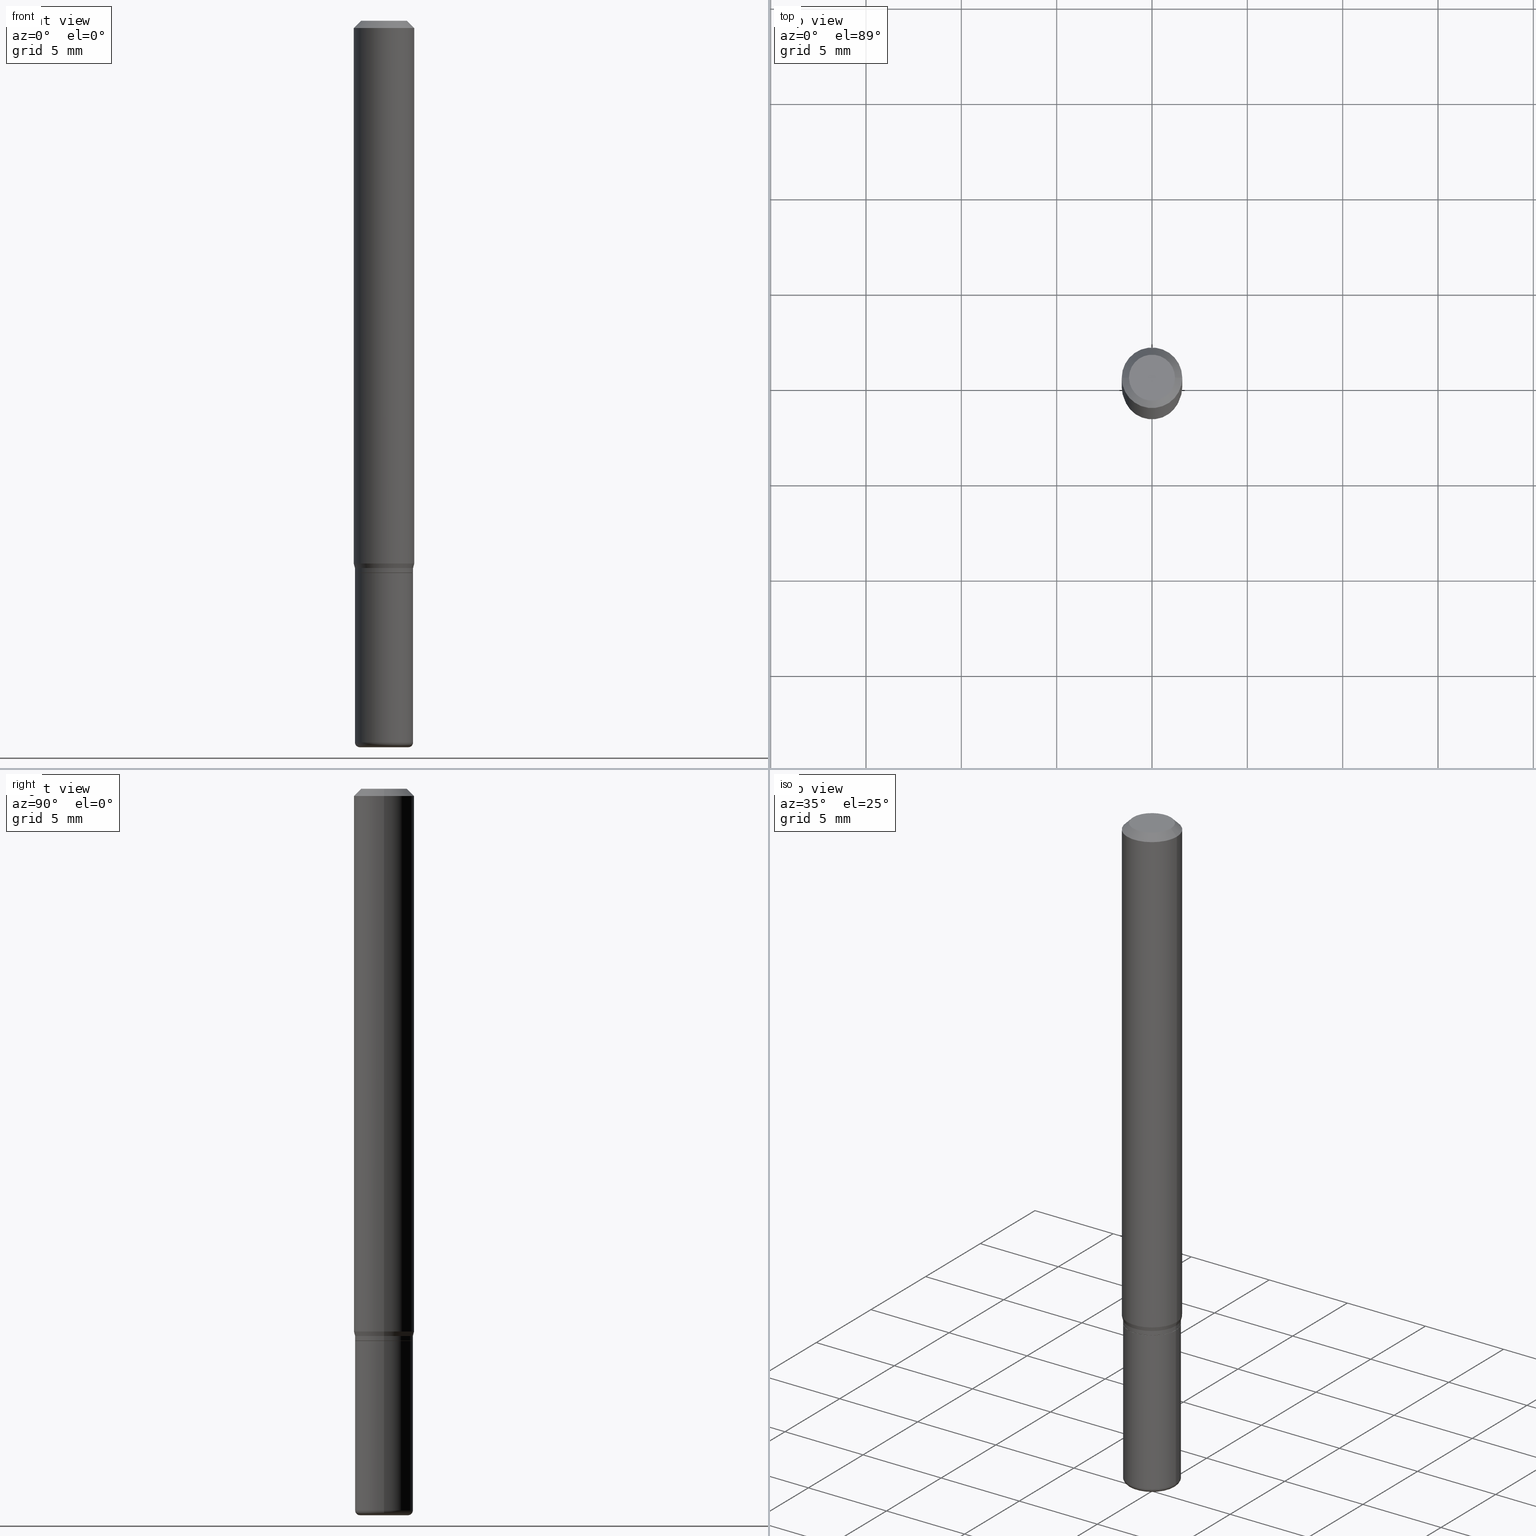
[diagram: canonical four-view strip — front | top / right | iso, engineering-drawing reading convention]
A machine part, canonical four-view strip (front | top / right | iso — engineering-drawing reading convention). The complete STEP part file that produces these views, byte-faithful:
ISO-10303-21;
HEADER;
FILE_DESCRIPTION (( 'STEP AP203' ),
    '1' );
FILE_NAME ('08775.STEP',
    '2024-02-29T20:59:46',
    ( '' ),
    ( '' ),
    'SwSTEP 2.0',
    'SolidWorks 2023',
    '' );
FILE_SCHEMA (( 'CONFIG_CONTROL_DESIGN' ));
ENDSEC;

DATA;
#1 = FACE_OUTER_BOUND ( 'NONE', #71, .T. ) ;
#2 = EDGE_CURVE ( 'NONE', #149, #237, #317, .T. ) ;
#3 = CARTESIAN_POINT ( 'NONE',  ( 0.06250000000000000000, -4.364351673553916694E-16, 3.047610484872459871E-30 ) ) ;
#4 = DIRECTION ( 'NONE',  ( -2.445468806185136597E-29, 3.491481338843145583E-15, 1.000000000000000000 ) ) ;
#5 = CARTESIAN_POINT ( 'NONE',  ( -0.05999999999999994921, -4.164972319122677700E-15, -1.490000000000000213 ) ) ;
#6 = DIRECTION ( 'NONE',  ( 1.000000000000000000, -6.982962677686270655E-15, 0.000000000000000000 ) ) ;
#7 = PERSON_AND_ORGANIZATION_ROLE ( 'design_owner' ) ;
#8 = ADVANCED_FACE ( 'NONE', ( #83 ), #166, .T. ) ;
#9 = AXIS2_PLACEMENT_3D ( 'NONE', #180, #129, #90 ) ;
#10 = CC_DESIGN_PERSON_AND_ORGANIZATION_ASSIGNMENT ( #103, #500, ( #305 ) ) ;
#11 = DIRECTION ( 'NONE',  ( 1.000000000000000000, -6.982962677686269077E-15, 0.000000000000000000 ) ) ;
#12 = CARTESIAN_POINT ( 'NONE',  ( -0.06250000000000000000, 4.440892098500626162E-16, -3.074334431409316114E-30 ) ) ;
#13 = FACE_OUTER_BOUND ( 'NONE', #280, .T. ) ;
#14 = DATE_TIME_ROLE ( 'classification_date' ) ;
#15 = DIRECTION ( 'NONE',  ( 1.000000000000000000, -6.982962677686266711E-15, 0.000000000000000000 ) ) ;
#16 = DIRECTION ( 'NONE',  ( 1.000000000000000000, -6.982962677686275388E-15, 0.000000000000000000 ) ) ;
#17 = DIRECTION ( 'NONE',  ( 1.000000000000000000, -6.982962677686265922E-15, 0.000000000000000000 ) ) ;
#18 = EDGE_CURVE ( 'NONE', #349, #42, #30, .T. ) ;
#19 = VECTOR ( 'NONE', #390, 39.37007874015748143 ) ;
#20 = DIRECTION ( 'NONE',  ( 1.000000000000000000, -6.982962677686267499E-15, 4.876176775795936353E-29 ) ) ;
#21 = CARTESIAN_POINT ( 'NONE',  ( 2.740563216406685153E-29, -3.912797948517150914E-15, -1.120669872981077786 ) ) ;
#22 = CALENDAR_DATE ( 2024, 29, 2 ) ;
#23 = CARTESIAN_POINT ( 'NONE',  ( -6.680649051745406845E-45, 9.538196290434862081E-31, 2.731847993664263218E-16 ) ) ;
#24 = DIRECTION ( 'NONE',  ( 0.7071067811865479058, -7.319954787623257623E-15, -0.7071067811865471286 ) ) ;
#25 = ADVANCED_FACE ( 'NONE', ( #75 ), #517, .T. ) ;
#26 = CIRCLE ( 'NONE', #319, 0.05999999999999997696 ) ;
#27 =( GEOMETRIC_REPRESENTATION_CONTEXT ( 3 ) GLOBAL_UNCERTAINTY_ASSIGNED_CONTEXT ( ( #314 ) ) GLOBAL_UNIT_ASSIGNED_CONTEXT ( ( #131, #171, #323 ) ) REPRESENTATION_CONTEXT ( 'NONE', 'WORKASPACE' ) );
#28 = CARTESIAN_POINT ( 'NONE',  ( 2.763379750989204444E-29, -3.945373912892755049E-15, -1.130000000000000115 ) ) ;
#29 = ADVANCED_FACE ( 'NONE', ( #13 ), #414, .F. ) ;
#30 = LINE ( 'NONE', #353, #111 ) ;
#31 = VERTEX_POINT ( 'NONE', #455 ) ;
#32 = ORIENTED_EDGE ( 'NONE', *, *, #2, .F. ) ;
#33 = CLOSED_SHELL ( 'NONE', ( #260, #146, #193, #60, #8, #25, #87, #477, #74, #344, #162, #307 ) ) ;
#34 = TOROIDAL_SURFACE ( 'NONE', #45, 0.04999999999999999584, 0.009999999999999953371 ) ;
#35 = ORIENTED_EDGE ( 'NONE', *, *, #153, .T. ) ;
#36 = APPROVAL_PERSON_ORGANIZATION ( #343, #82, #189 ) ;
#37 = VERTEX_POINT ( 'NONE', #249 ) ;
#38 = DIRECTION ( 'NONE',  ( -2.445468806185136877E-29, 3.491481338843145188E-15, 1.000000000000000000 ) ) ;
#39 = ORIENTED_EDGE ( 'NONE', *, *, #18, .T. ) ;
#40 = EDGE_CURVE ( 'NONE', #161, #443, #68, .T. ) ;
#41 = ORIENTED_EDGE ( 'NONE', *, *, #434, .T. ) ;
#42 = VERTEX_POINT ( 'NONE', #290 ) ;
#43 = ORIENTED_EDGE ( 'NONE', *, *, #438, .F. ) ;
#44 = DIRECTION ( 'NONE',  ( -1.000000000000000000, 6.982962677686265922E-15, -4.876176775795935793E-29 ) ) ;
#45 = AXIS2_PLACEMENT_3D ( 'NONE', #345, #454, #225 ) ;
#46 = DIRECTION ( 'NONE',  ( -6.982962677686266711E-15, -1.000000000000000000, 3.491481338843145583E-15 ) ) ;
#47 = CALENDAR_DATE ( 2024, 29, 2 ) ;
#48 = AXIS2_PLACEMENT_3D ( 'NONE', #346, #341, #219 ) ;
#49 = COORDINATED_UNIVERSAL_TIME_OFFSET ( 5, 0, .BEHIND. ) ;
#50 = VECTOR ( 'NONE', #286, 39.37007874015748143 ) ;
#51 = DIRECTION ( 'NONE',  ( 1.000000000000000000, -6.982962677686266711E-15, 4.876176775795935793E-29 ) ) ;
#52 = DIRECTION ( 'NONE',  ( -2.445468806185136597E-29, 3.491481338843145583E-15, 1.000000000000000000 ) ) ;
#53 = SECURITY_CLASSIFICATION_LEVEL ( 'unclassified' ) ;
#54 = DIRECTION ( 'NONE',  ( -2.445468806185136597E-29, 3.491481338843145583E-15, 1.000000000000000000 ) ) ;
#55 = DIRECTION ( 'NONE',  ( 2.438088387897960049E-29, -3.491481338843145188E-15, -1.000000000000000000 ) ) ;
#56 = CARTESIAN_POINT ( 'NONE',  ( -0.04750000000000000749, 3.578768372314221353E-16, 2.731847993664239060E-16 ) ) ;
#57 = APPROVAL_DATE_TIME ( #254, #488 ) ;
#58 = CARTESIAN_POINT ( 'NONE',  ( 0.000000000000000000, 0.000000000000000000, 0.000000000000000000 ) ) ;
#59 = CARTESIAN_POINT ( 'NONE',  ( 3.668203209277632395E-31, -5.237222008264614861E-17, -0.01499999999999970281 ) ) ;
#60 = ADVANCED_FACE ( 'NONE', ( #1 ), #211, .T. ) ;
#61 = CALENDAR_DATE ( 2024, 29, 2 ) ;
#62 = AXIS2_PLACEMENT_3D ( 'NONE', #139, #143, #499 ) ;
#63 = CIRCLE ( 'NONE', #440, 0.04750000000000000749 ) ;
#64 = DIRECTION ( 'NONE',  ( -2.445468806185136597E-29, 3.491481338843145583E-15, 1.000000000000000000 ) ) ;
#65 = CARTESIAN_POINT ( 'NONE',  ( 0.06250000000000000000, -4.811533449433669144E-16, -0.01499999999999970281 ) ) ;
#66 = ORIENTED_EDGE ( 'NONE', *, *, #411, .F. ) ;
#67 = EDGE_CURVE ( 'NONE', #188, #116, #179, .T. ) ;
#68 = CIRCLE ( 'NONE', #222, 0.04999999999999999584 ) ;
#69 = AXIS2_PLACEMENT_3D ( 'NONE', #393, #472, #275 ) ;
#70 = APPROVAL_PERSON_ORGANIZATION ( #347, #181, #130 ) ;
#71 = EDGE_LOOP ( 'NONE', ( #361, #118, #81, #241 ) ) ;
#72 = EDGE_LOOP ( 'NONE', ( #66, #198, #39, #476 ) ) ;
#73 = ORIENTED_EDGE ( 'NONE', *, *, #497, .T. ) ;
#74 = ADVANCED_FACE ( 'NONE', ( #256 ), #421, .F. ) ;
#75 = FACE_OUTER_BOUND ( 'NONE', #72, .T. ) ;
#76 = ORIENTED_EDGE ( 'NONE', *, *, #324, .T. ) ;
#77 = AXIS2_PLACEMENT_3D ( 'NONE', #338, #494, #51 ) ;
#78 = ORIENTED_EDGE ( 'NONE', *, *, #172, .T. ) ;
#79 = VERTEX_POINT ( 'NONE', #495 ) ;
#80 = ORIENTED_EDGE ( 'NONE', *, *, #40, .T. ) ;
#81 = ORIENTED_EDGE ( 'NONE', *, *, #236, .F. ) ;
#82 = APPROVAL ( #251, 'UNSPECIFIED' ) ;
#83 = FACE_OUTER_BOUND ( 'NONE', #509, .T. ) ;
#84 = AXIS2_PLACEMENT_3D ( 'NONE', #214, #55, #381 ) ;
#85 = CIRCLE ( 'NONE', #127, 0.04999999999999999584 ) ;
#86 = CARTESIAN_POINT ( 'NONE',  ( -0.05999999999999995615, 4.263256414560597999E-16, -2.951361054152941661E-30 ) ) ;
#87 = ADVANCED_FACE ( 'NONE', ( #405 ), #169, .T. ) ;
#88 = PRODUCT_DEFINITION ( 'UNKNOWN', '', #305, #119 ) ;
#89 = CARTESIAN_POINT ( 'NONE',  ( 3.668203209277632395E-31, -5.237222008264614861E-17, -0.01499999999999970281 ) ) ;
#90 = DIRECTION ( 'NONE',  ( 1.000000000000000000, -6.982962677686261977E-15, 0.000000000000000000 ) ) ;
#91 = DIRECTION ( 'NONE',  ( -0.7071067811866199593, 7.493145998870616062E-15, 0.7071067811864750752 ) ) ;
#92 = APPLICATION_PROTOCOL_DEFINITION ( 'international standard', 'config_control_design', 1994, #320 ) ;
#93 = LINE ( 'NONE', #65, #518 ) ;
#94 = CARTESIAN_POINT ( 'NONE',  ( 0.000000000000000000, 0.000000000000000000, 0.000000000000000000 ) ) ;
#95 = CALENDAR_DATE ( 2024, 29, 2 ) ;
#96 = CALENDAR_DATE ( 2024, 29, 2 ) ;
#97 = CIRCLE ( 'NONE', #318, 0.06250000000000000000 ) ;
#98 = DIRECTION ( 'NONE',  ( 1.000000000000000000, -6.982962677686275388E-15, 0.000000000000000000 ) ) ;
#99 = DIRECTION ( 'NONE',  ( -2.445468806185136597E-29, 3.491481338843145583E-15, 1.000000000000000000 ) ) ;
#100 = EDGE_CURVE ( 'NONE', #31, #79, #253, .T. ) ;
#101 = DIRECTION ( 'NONE',  ( 1.000000000000000000, -6.982962677686265922E-15, 4.876176775795935793E-29 ) ) ;
#102 = DIRECTION ( 'NONE',  ( -2.445468806185136597E-29, 3.491481338843145583E-15, 1.000000000000000000 ) ) ;
#103 = PERSON_AND_ORGANIZATION ( #367, #417 ) ;
#104 = DIRECTION ( 'NONE',  ( -2.438088387897960049E-29, 3.491481338843145188E-15, 1.000000000000000000 ) ) ;
#105 = CARTESIAN_POINT ( 'NONE',  ( 0.05949999999999997652, -4.395775005603518747E-15, -1.140000000000000124 ) ) ;
#106 = CIRCLE ( 'NONE', #398, 0.04750000000000000749 ) ;
#107 = CARTESIAN_POINT ( 'NONE',  ( 2.787834439051055989E-29, -3.980288726281186698E-15, -1.140000000000000124 ) ) ;
#108 = EDGE_CURVE ( 'NONE', #439, #512, #264, .T. ) ;
#109 = EDGE_CURVE ( 'NONE', #79, #514, #126, .T. ) ;
#110 = ORIENTED_EDGE ( 'NONE', *, *, #18, .F. ) ;
#111 = VECTOR ( 'NONE', #507, 39.37007874015748143 ) ;
#112 = AXIS2_PLACEMENT_3D ( 'NONE', #368, #484, #15 ) ;
#113 = APPROVAL_PERSON_ORGANIZATION ( #419, #488, #412 ) ;
#114 = EDGE_CURVE ( 'NONE', #395, #349, #326, .T. ) ;
#115 = ORIENTED_EDGE ( 'NONE', *, *, #428, .T. ) ;
#116 = VERTEX_POINT ( 'NONE', #333 ) ;
#117 = ORIENTED_EDGE ( 'NONE', *, *, #299, .F. ) ;
#118 = ORIENTED_EDGE ( 'NONE', *, *, #270, .T. ) ;
#119 = DESIGN_CONTEXT ( 'detailed design', #320, 'design' ) ;
#120 = CIRCLE ( 'NONE', #304, 0.06250000000000000000 ) ;
#121 = EDGE_LOOP ( 'NONE', ( #228, #364, #397, #43 ) ) ;
#122 = EDGE_CURVE ( 'NONE', #188, #276, #106, .T. ) ;
#123 = ORIENTED_EDGE ( 'NONE', *, *, #148, .T. ) ;
#124 = VERTEX_POINT ( 'NONE', #496 ) ;
#125 = DIRECTION ( 'NONE',  ( 1.000000000000000000, -6.982962677686270655E-15, 0.000000000000000000 ) ) ;
#126 = CIRCLE ( 'NONE', #427, 0.05999999999999997696 ) ;
#127 = AXIS2_PLACEMENT_3D ( 'NONE', #218, #332, #16 ) ;
#128 = CARTESIAN_POINT ( 'NONE',  ( 0.000000000000000000, 0.000000000000000000, 0.000000000000000000 ) ) ;
#129 = DIRECTION ( 'NONE',  ( -2.445468806185136597E-29, 3.491481338843145583E-15, 1.000000000000000000 ) ) ;
#130 = APPROVAL_ROLE ( '' ) ;
#131 =( CONVERSION_BASED_UNIT ( 'INCH', #176 ) LENGTH_UNIT ( ) NAMED_UNIT ( #227 ) );
#132 = DIRECTION ( 'NONE',  ( -2.445468806185136597E-29, 3.491481338843145583E-15, 1.000000000000000000 ) ) ;
#133 = CARTESIAN_POINT ( 'NONE',  ( 3.668203209277704895E-29, -5.237222008264718177E-15, -1.500000000000000222 ) ) ;
#134 = DIRECTION ( 'NONE',  ( -2.438088387897960049E-29, 3.491481338843145188E-15, 1.000000000000000000 ) ) ;
#135 = DIRECTION ( 'NONE',  ( -2.445468806185136877E-29, 3.491481338843145188E-15, 1.000000000000000000 ) ) ;
#136 = CARTESIAN_POINT ( 'NONE',  ( -0.06250000000000000000, 3.840629472727455270E-16, -0.01499999999999970281 ) ) ;
#137 = DIRECTION ( 'NONE',  ( -2.445468806185136597E-29, 3.491481338843145583E-15, 1.000000000000000000 ) ) ;
#138 = COORDINATED_UNIVERSAL_TIME_OFFSET ( 5, 0, .BEHIND. ) ;
#139 = CARTESIAN_POINT ( 'NONE',  ( 3.643748521215853910E-29, -5.202307194876288105E-15, -1.490000000000000213 ) ) ;
#140 = EDGE_CURVE ( 'NONE', #37, #42, #120, .T. ) ;
#141 = CIRCLE ( 'NONE', #156, 0.009999999999999953371 ) ;
#142 = FACE_OUTER_BOUND ( 'NONE', #182, .T. ) ;
#143 = DIRECTION ( 'NONE',  ( -2.445468806185136597E-29, 3.491481338843145583E-15, 1.000000000000000000 ) ) ;
#144 = PERSON_AND_ORGANIZATION_ROLE ( 'design_supplier' ) ;
#145 = LINE ( 'NONE', #12, #196 ) ;
#146 = ADVANCED_FACE ( 'NONE', ( #410 ), #459, .T. ) ;
#147 = CARTESIAN_POINT ( 'NONE',  ( -0.05999999999999994921, -3.493878505051891428E-15, -1.130000000000000115 ) ) ;
#148 = EDGE_CURVE ( 'NONE', #161, #439, #141, .T. ) ;
#149 = VERTEX_POINT ( 'NONE', #212 ) ;
#150 = VECTOR ( 'NONE', #485, 39.37007874015748143 ) ;
#151 = EDGE_CURVE ( 'NONE', #163, #514, #416, .T. ) ;
#152 = ORIENTED_EDGE ( 'NONE', *, *, #352, .F. ) ;
#153 = EDGE_CURVE ( 'NONE', #349, #395, #429, .T. ) ;
#154 = CLOSED_SHELL ( 'NONE', ( #363, #306, #29, #191, #446, #170 ) ) ;
#155 = ORIENTED_EDGE ( 'NONE', *, *, #67, .F. ) ;
#156 = AXIS2_PLACEMENT_3D ( 'NONE', #291, #46, #11 ) ;
#157 = LOCAL_TIME ( 15, 59, 46.00000000000000000, #378 ) ;
#158 = ORIENTED_EDGE ( 'NONE', *, *, #2, .T. ) ;
#159 = EDGE_LOOP ( 'NONE', ( #471, #435 ) ) ;
#160 = ORIENTED_EDGE ( 'NONE', *, *, #109, .F. ) ;
#161 = VERTEX_POINT ( 'NONE', #185 ) ;
#162 = ADVANCED_FACE ( 'NONE', ( #369 ), #433, .T. ) ;
#163 = VERTEX_POINT ( 'NONE', #105 ) ;
#164 = ORIENTED_EDGE ( 'NONE', *, *, #434, .F. ) ;
#165 = EDGE_LOOP ( 'NONE', ( #359, #117 ) ) ;
#166 = CONICAL_SURFACE ( 'NONE', #504, 0.05999999999999994921, 0.2617993877991496854 ) ;
#167 = CIRCLE ( 'NONE', #493, 0.05949999999999997652 ) ;
#168 = ORIENTED_EDGE ( 'NONE', *, *, #220, .F. ) ;
#169 = CYLINDRICAL_SURFACE ( 'NONE', #200, 0.06250000000000000000 ) ;
#170 = ADVANCED_FACE ( 'NONE', ( #215 ), #422, .F. ) ;
#171 =( NAMED_UNIT ( * ) PLANE_ANGLE_UNIT ( ) SI_UNIT ( $, .RADIAN. ) );
#172 = EDGE_CURVE ( 'NONE', #31, #163, #167, .T. ) ;
#173 = DIRECTION ( 'NONE',  ( 1.000000000000000000, -6.982962677686261977E-15, 0.000000000000000000 ) ) ;
#174 = PERSON_AND_ORGANIZATION ( #367, #417 ) ;
#175 = AXIS2_PLACEMENT_3D ( 'NONE', #58, #54, #430 ) ;
#176 = LENGTH_MEASURE_WITH_UNIT ( LENGTH_MEASURE( 0.02539999999999999897 ), #204 );
#177 = CARTESIAN_POINT ( 'NONE',  ( 0.05949999999999997652, -4.395775005603518747E-15, -1.140000000000000124 ) ) ;
#178 = DIRECTION ( 'NONE',  ( 1.000000000000000000, -6.982962677686268288E-15, 0.000000000000000000 ) ) ;
#179 = LINE ( 'NONE', #136, #432 ) ;
#180 = CARTESIAN_POINT ( 'NONE',  ( 2.787834439051055989E-29, -3.980288726281186698E-15, -1.140000000000000124 ) ) ;
#181 = APPROVAL ( #483, 'UNSPECIFIED' ) ;
#182 = EDGE_LOOP ( 'NONE', ( #195, #73, #152, #168 ) ) ;
#183 = COORDINATED_UNIVERSAL_TIME_OFFSET ( 5, 0, .BEHIND. ) ;
#184 = CARTESIAN_POINT ( 'NONE',  ( 0.05999999999999997696, -4.397520746272941039E-15, -1.139500000000000179 ) ) ;
#185 = CARTESIAN_POINT ( 'NONE',  ( 0.04999999999999999584, -5.586370142149032301E-15, -1.500000000000000222 ) ) ;
#186 = VECTOR ( 'NONE', #91, 39.37007874015748143 ) ;
#187 = DIRECTION ( 'NONE',  ( -2.445468806185136597E-29, 3.491481338843145583E-15, 1.000000000000000000 ) ) ;
#188 = VERTEX_POINT ( 'NONE', #56 ) ;
#189 = APPROVAL_ROLE ( '' ) ;
#190 = EDGE_CURVE ( 'NONE', #42, #37, #473, .T. ) ;
#191 = ADVANCED_FACE ( 'NONE', ( #287 ), #425, .T. ) ;
#192 = AXIS2_PLACEMENT_3D ( 'NONE', #462, #245, #487 ) ;
#193 = ADVANCED_FACE ( 'NONE', ( #382 ), #238, .T. ) ;
#194 = DIRECTION ( 'NONE',  ( 1.000000000000000000, -6.982962677686265922E-15, 0.000000000000000000 ) ) ;
#195 = ORIENTED_EDGE ( 'NONE', *, *, #108, .T. ) ;
#196 = VECTOR ( 'NONE', #375, 39.37007874015748143 ) ;
#197 = ORIENTED_EDGE ( 'NONE', *, *, #438, .T. ) ;
#198 = ORIENTED_EDGE ( 'NONE', *, *, #114, .T. ) ;
#199 = EDGE_LOOP ( 'NONE', ( #391, #516, #197, #232 ) ) ;
#200 = AXIS2_PLACEMENT_3D ( 'NONE', #322, #4, #423 ) ;
#201 = CARTESIAN_POINT ( 'NONE',  ( 4.189777606612038494E-16, 0.05999999999999602179, -1.140000000000000346 ) ) ;
#202 = DIRECTION ( 'NONE',  ( 2.445468806185136597E-29, -3.491481338843145583E-15, -1.000000000000000000 ) ) ;
#203 = CARTESIAN_POINT ( 'NONE',  ( 2.740563216406685153E-29, -3.912797948517150914E-15, -1.120669872981077786 ) ) ;
#204 =( LENGTH_UNIT ( ) NAMED_UNIT ( * ) SI_UNIT ( $, .METRE. ) );
#205 = CARTESIAN_POINT ( 'NONE',  ( 2.786611704647963748E-29, -3.978542985611765194E-15, -1.139500000000000179 ) ) ;
#206 = DATE_AND_TIME ( #61, #267 ) ;
#207 = VECTOR ( 'NONE', #336, 39.37007874015748143 ) ;
#208 = CARTESIAN_POINT ( 'NONE',  ( -0.05949999999999997652, -3.557515798503927106E-15, -1.140000000000000124 ) ) ;
#209 = LINE ( 'NONE', #86, #406 ) ;
#210 = FACE_OUTER_BOUND ( 'NONE', #311, .T. ) ;
#211 = CYLINDRICAL_SURFACE ( 'NONE', #284, 0.06250000000000000000 ) ;
#212 = CARTESIAN_POINT ( 'NONE',  ( -0.05999999999999999778, -4.164972319122677700E-15, -1.140000000000000124 ) ) ;
#213 = CARTESIAN_POINT ( 'NONE',  ( 2.787834439051055989E-29, -3.980288726281186698E-15, -1.140000000000000124 ) ) ;
#214 = CARTESIAN_POINT ( 'NONE',  ( 3.316907271900976589E-16, 0.04750000000000000749, -2.925296391183627249E-17 ) ) ;
#215 = FACE_OUTER_BOUND ( 'NONE', #165, .T. ) ;
#216 = DATE_AND_TIME ( #95, #386 ) ;
#217 = ORIENTED_EDGE ( 'NONE', *, *, #140, .T. ) ;
#218 = CARTESIAN_POINT ( 'NONE',  ( 3.668203209277704895E-29, -5.237222008264718177E-15, -1.500000000000000222 ) ) ;
#219 = DIRECTION ( 'NONE',  ( 1.000000000000000000, -6.982962677686265922E-15, 0.000000000000000000 ) ) ;
#220 = EDGE_CURVE ( 'NONE', #439, #237, #315, .T. ) ;
#221 = PERSON_AND_ORGANIZATION_ROLE ( 'classification_officer' ) ;
#222 = AXIS2_PLACEMENT_3D ( 'NONE', #133, #52, #98 ) ;
#223 = AXIS2_PLACEMENT_3D ( 'NONE', #385, #298, #173 ) ;
#224 = AXIS2_PLACEMENT_3D ( 'NONE', #128, #244, #379 ) ;
#225 = DIRECTION ( 'NONE',  ( 1.000000000000000000, -6.982962677686273810E-15, 4.883557194083115143E-29 ) ) ;
#226 = APPLICATION_CONTEXT ( 'configuration controlled 3d designs of mechanical parts and assemblies' ) ;
#227 = DIMENSIONAL_EXPONENTS ( 1.000000000000000000, 0.000000000000000000, 0.000000000000000000, 0.000000000000000000, 0.000000000000000000, 0.000000000000000000, 0.000000000000000000 ) ;
#228 = ORIENTED_EDGE ( 'NONE', *, *, #231, .T. ) ;
#229 = AXIS2_PLACEMENT_3D ( 'NONE', #213, #187, #380 ) ;
#230 = SECURITY_CLASSIFICATION ( '', '', #53 ) ;
#231 = EDGE_CURVE ( 'NONE', #514, #79, #26, .T. ) ;
#232 = ORIENTED_EDGE ( 'NONE', *, *, #114, .F. ) ;
#233 = DIRECTION ( 'NONE',  ( -2.445468806185136597E-29, 3.491481338843145583E-15, 1.000000000000000000 ) ) ;
#234 = ORIENTED_EDGE ( 'NONE', *, *, #151, .T. ) ;
#235 = FACE_OUTER_BOUND ( 'NONE', #502, .T. ) ;
#236 = EDGE_CURVE ( 'NONE', #124, #116, #97, .T. ) ;
#237 = VERTEX_POINT ( 'NONE', #283 ) ;
#238 = CONICAL_SURFACE ( 'NONE', #508, 0.06250000000000000000, 0.7853981633974488341 ) ;
#239 = CC_DESIGN_APPROVAL ( #488, ( #88 ) ) ;
#240 = ORIENTED_EDGE ( 'NONE', *, *, #172, .F. ) ;
#241 = ORIENTED_EDGE ( 'NONE', *, *, #469, .F. ) ;
#242 = EDGE_CURVE ( 'NONE', #443, #512, #243, .T. ) ;
#243 = CIRCLE ( 'NONE', #261, 0.009999999999999953371 ) ;
#244 = DIRECTION ( 'NONE',  ( 0.000000000000000000, 0.000000000000000000, 1.000000000000000000 ) ) ;
#245 = DIRECTION ( 'NONE',  ( -2.445468806185136597E-29, 3.491481338843145583E-15, 1.000000000000000000 ) ) ;
#246 = APPROVAL_STATUS ( 'not_yet_approved' ) ;
#247 = DIRECTION ( 'NONE',  ( 1.000000000000000000, -6.982962677686266711E-15, 0.000000000000000000 ) ) ;
#248 = CARTESIAN_POINT ( 'NONE',  ( -0.05999999999999994921, -3.519048271436694953E-15, -1.130000000000000115 ) ) ;
#249 = CARTESIAN_POINT ( 'NONE',  ( -0.06250000000000000000, -3.468708738667088298E-15, -1.120669872981077786 ) ) ;
#250 = DIRECTION ( 'NONE',  ( -2.445468806185136597E-29, 3.491481338843145583E-15, 1.000000000000000000 ) ) ;
#251 = APPROVAL_STATUS ( 'not_yet_approved' ) ;
#252 = AXIS2_PLACEMENT_3D ( 'NONE', #94, #137, #482 ) ;
#253 = LINE ( 'NONE', #208, #186 ) ;
#254 = DATE_AND_TIME ( #96, #450 ) ;
#255 = FACE_OUTER_BOUND ( 'NONE', #121, .T. ) ;
#256 = FACE_OUTER_BOUND ( 'NONE', #159, .T. ) ;
#257 = DIRECTION ( 'NONE',  ( -2.445468806185136597E-29, 3.491481338843145583E-15, 1.000000000000000000 ) ) ;
#258 = CARTESIAN_POINT ( 'NONE',  ( 0.05999999999999994921, -4.364351673553930105E-15, -1.130000000000000115 ) ) ;
#259 = CYLINDRICAL_SURFACE ( 'NONE', #175, 0.05999999999999995615 ) ;
#260 = ADVANCED_FACE ( 'NONE', ( #255 ), #259, .T. ) ;
#261 = AXIS2_PLACEMENT_3D ( 'NONE', #325, #420, #387 ) ;
#262 = LINE ( 'NONE', #248, #19 ) ;
#263 = CC_DESIGN_DATE_AND_TIME_ASSIGNMENT ( #216, #465, ( #88 ) ) ;
#264 = CIRCLE ( 'NONE', #62, 0.05999999999999994921 ) ;
#265 = ORIENTED_EDGE ( 'NONE', *, *, #497, .F. ) ;
#266 = AXIS2_PLACEMENT_3D ( 'NONE', #424, #64, #178 ) ;
#267 = LOCAL_TIME ( 15, 59, 46.00000000000000000, #452 ) ;
#268 = SHAPE_DEFINITION_REPRESENTATION ( #351, #308 ) ;
#269 = EDGE_LOOP ( 'NONE', ( #513, #217, #396, #355 ) ) ;
#270 = EDGE_CURVE ( 'NONE', #37, #116, #145, .T. ) ;
#271 = PRODUCT ( '08775', '08775', '', ( #370 ) ) ;
#272 = EDGE_LOOP ( 'NONE', ( #442, #240 ) ) ;
#273 = ORIENTED_EDGE ( 'NONE', *, *, #190, .F. ) ;
#274 = ORIENTED_EDGE ( 'NONE', *, *, #231, .F. ) ;
#275 = DIRECTION ( 'NONE',  ( 1.000000000000000000, -6.982962677686273810E-15, 4.883557194083115143E-29 ) ) ;
#276 = VERTEX_POINT ( 'NONE', #498 ) ;
#277 = AXIS2_PLACEMENT_3D ( 'NONE', #201, #461, #44 ) ;
#278 = ORIENTED_EDGE ( 'NONE', *, *, #220, .T. ) ;
#279 = TOROIDAL_SURFACE ( 'NONE', #69, 0.04999999999999999584, 0.009999999999999953371 ) ;
#280 = EDGE_LOOP ( 'NONE', ( #403, #158 ) ) ;
#281 = CC_DESIGN_PERSON_AND_ORGANIZATION_ASSIGNMENT ( #292, #457, ( #88 ) ) ;
#282 = DIRECTION ( 'NONE',  ( 2.445468806185136597E-29, -3.491481338843145583E-15, -1.000000000000000000 ) ) ;
#283 = CARTESIAN_POINT ( 'NONE',  ( 0.05999999999999999778, -4.399266486942362543E-15, -1.140000000000000124 ) ) ;
#284 = AXIS2_PLACEMENT_3D ( 'NONE', #366, #490, #376 ) ;
#285 = AXIS2_PLACEMENT_3D ( 'NONE', #107, #104, #101 ) ;
#286 = DIRECTION ( 'NONE',  ( -2.445468806185136877E-29, 3.491481338843145188E-15, 1.000000000000000000 ) ) ;
#287 = FACE_OUTER_BOUND ( 'NONE', #313, .T. ) ;
#288 = DIRECTION ( 'NONE',  ( -2.445468806185136597E-29, 3.491481338843145583E-15, 1.000000000000000000 ) ) ;
#289 = DIRECTION ( 'NONE',  ( 1.000000000000000000, -6.982962677686273810E-15, 0.000000000000000000 ) ) ;
#290 = CARTESIAN_POINT ( 'NONE',  ( 0.06250000000000000000, -4.349233115872542583E-15, -1.120669872981077786 ) ) ;
#291 = CARTESIAN_POINT ( 'NONE',  ( 0.04999999999999999584, -5.551455328760601441E-15, -1.490000000000000213 ) ) ;
#292 = PERSON_AND_ORGANIZATION ( #367, #417 ) ;
#293 = CARTESIAN_POINT ( 'NONE',  ( 0.05999999999999994921, -5.621284955537463950E-15, -1.490000000000000213 ) ) ;
#294 = DIRECTION ( 'NONE',  ( -0.7071067811865479058, 2.468850131082261005E-15, -0.7071067811865471286 ) ) ;
#295 = AXIS2_PLACEMENT_3D ( 'NONE', #339, #335, #17 ) ;
#296 = CIRCLE ( 'NONE', #505, 0.05999999999999994921 ) ;
#297 = FACE_OUTER_BOUND ( 'NONE', #199, .T. ) ;
#298 = DIRECTION ( 'NONE',  ( -2.445468806185136597E-29, 3.491481338843145583E-15, 1.000000000000000000 ) ) ;
#299 = EDGE_CURVE ( 'NONE', #443, #161, #85, .T. ) ;
#300 = CYLINDRICAL_SURFACE ( 'NONE', #77, 0.05999999999999997696 ) ;
#301 = CARTESIAN_POINT ( 'NONE',  ( -6.680649051745406845E-45, 9.538196290434862081E-31, 2.731847993664263218E-16 ) ) ;
#302 = MANIFOLD_SOLID_BREP ( 'Body-Move/Copy2[2]', #33 ) ;
#303 = FACE_OUTER_BOUND ( 'NONE', #272, .T. ) ;
#304 = AXIS2_PLACEMENT_3D ( 'NONE', #21, #257, #372 ) ;
#305 = PRODUCT_DEFINITION_FORMATION_WITH_SPECIFIED_SOURCE ( 'ANY', '', #271, .NOT_KNOWN. ) ;
#306 = ADVANCED_FACE ( 'NONE', ( #142 ), #300, .T. ) ;
#307 = ADVANCED_FACE ( 'NONE', ( #297 ), #463, .T. ) ;
#308 = ADVANCED_BREP_SHAPE_REPRESENTATION ( '08775', ( #475, #302, #224 ), #27 ) ;
#309 = ORIENTED_EDGE ( 'NONE', *, *, #151, .F. ) ;
#310 = ORIENTED_EDGE ( 'NONE', *, *, #122, .F. ) ;
#311 = EDGE_LOOP ( 'NONE', ( #80, #354, #470, #436 ) ) ;
#312 = EDGE_LOOP ( 'NONE', ( #515, #78, #234, #160 ) ) ;
#313 = EDGE_LOOP ( 'NONE', ( #265, #41, #278, #32 ) ) ;
#314 = UNCERTAINTY_MEASURE_WITH_UNIT (LENGTH_MEASURE( 1.000000000000000082E-05 ), #131, 'distance_accuracy_value', 'NONE');
#315 = LINE ( 'NONE', #360, #150 ) ;
#316 = ORIENTED_EDGE ( 'NONE', *, *, #299, .T. ) ;
#317 = CIRCLE ( 'NONE', #340, 0.05999999999999999778 ) ;
#318 = AXIS2_PLACEMENT_3D ( 'NONE', #89, #288, #247 ) ;
#319 = AXIS2_PLACEMENT_3D ( 'NONE', #481, #132, #125 ) ;
#320 = APPLICATION_CONTEXT ( 'configuration controlled 3d designs of mechanical parts and assemblies' ) ;
#321 = CC_DESIGN_DATE_AND_TIME_ASSIGNMENT ( #330, #14, ( #230 ) ) ;
#322 = CARTESIAN_POINT ( 'NONE',  ( 0.000000000000000000, 0.000000000000000000, 0.000000000000000000 ) ) ;
#323 =( NAMED_UNIT ( * ) SI_UNIT ( $, .STERADIAN. ) SOLID_ANGLE_UNIT ( ) );
#324 = EDGE_CURVE ( 'NONE', #163, #31, #468, .T. ) ;
#325 = CARTESIAN_POINT ( 'NONE',  ( -0.04999999999999999584, -4.847035826996237697E-15, -1.490000000000000213 ) ) ;
#326 = CIRCLE ( 'NONE', #48, 0.05999999999999994921 ) ;
#327 = VECTOR ( 'NONE', #135, 39.37007874015748143 ) ;
#328 = DIRECTION ( 'NONE',  ( 1.000000000000000000, -6.982962677686265922E-15, 4.876176775795935793E-29 ) ) ;
#329 = CC_DESIGN_SECURITY_CLASSIFICATION ( #230, ( #305 ) ) ;
#330 = DATE_AND_TIME ( #22, #157 ) ;
#331 = DIRECTION ( 'NONE',  ( -1.000000000000000000, 6.982962677686266711E-15, 0.000000000000000000 ) ) ;
#332 = DIRECTION ( 'NONE',  ( -2.445468806185136597E-29, 3.491481338843145583E-15, 1.000000000000000000 ) ) ;
#333 = CARTESIAN_POINT ( 'NONE',  ( -0.06250000000000000000, -1.538495874449835789E-15, -0.01499999999999970281 ) ) ;
#334 = LINE ( 'NONE', #489, #327 ) ;
#335 = DIRECTION ( 'NONE',  ( -2.445468806185136597E-29, 3.491481338843145583E-15, 1.000000000000000000 ) ) ;
#336 = DIRECTION ( 'NONE',  ( 0.7071067811866199593, -2.468850131083015945E-15, 0.7071067811864750752 ) ) ;
#337 = ORIENTED_EDGE ( 'NONE', *, *, #503, .T. ) ;
#338 = CARTESIAN_POINT ( 'NONE',  ( 0.000000000000000000, 0.000000000000000000, 0.000000000000000000 ) ) ;
#339 = CARTESIAN_POINT ( 'NONE',  ( 2.763379750989204444E-29, -3.945373912892755049E-15, -1.130000000000000115 ) ) ;
#340 = AXIS2_PLACEMENT_3D ( 'NONE', #445, #233, #480 ) ;
#341 = DIRECTION ( 'NONE',  ( -2.445468806185136597E-29, 3.491481338843145583E-15, 1.000000000000000000 ) ) ;
#342 = CIRCLE ( 'NONE', #112, 0.06250000000000000000 ) ;
#343 = PERSON_AND_ORGANIZATION ( #367, #417 ) ;
#344 = ADVANCED_FACE ( 'NONE', ( #303 ), #466, .F. ) ;
#345 = CARTESIAN_POINT ( 'NONE',  ( 3.643748521215853910E-29, -5.202307194876288105E-15, -1.490000000000000213 ) ) ;
#346 = CARTESIAN_POINT ( 'NONE',  ( 2.763379750989204444E-29, -3.945373912892755049E-15, -1.130000000000000115 ) ) ;
#347 = PERSON_AND_ORGANIZATION ( #367, #417 ) ;
#348 = DIRECTION ( 'NONE',  ( -2.445468806185136597E-29, 3.491481338843145583E-15, 1.000000000000000000 ) ) ;
#349 = VERTEX_POINT ( 'NONE', #258 ) ;
#350 = AXIS2_PLACEMENT_3D ( 'NONE', #358, #202, #331 ) ;
#351 = PRODUCT_DEFINITION_SHAPE ( 'NONE', 'NONE',  #88 ) ;
#352 = EDGE_CURVE ( 'NONE', #237, #149, #392, .T. ) ;
#353 = CARTESIAN_POINT ( 'NONE',  ( 0.05999999999999994921, -4.364351673553930105E-15, -1.130000000000000115 ) ) ;
#354 = ORIENTED_EDGE ( 'NONE', *, *, #242, .T. ) ;
#355 = ORIENTED_EDGE ( 'NONE', *, *, #503, .F. ) ;
#356 = CC_DESIGN_PERSON_AND_ORGANIZATION_ASSIGNMENT ( #458, #7, ( #271 ) ) ;
#357 = ORIENTED_EDGE ( 'NONE', *, *, #428, .F. ) ;
#358 = CARTESIAN_POINT ( 'NONE',  ( 3.668203209277632395E-31, -5.237222008264614861E-17, -0.01499999999999970281 ) ) ;
#359 = ORIENTED_EDGE ( 'NONE', *, *, #40, .F. ) ;
#360 = CARTESIAN_POINT ( 'NONE',  ( 0.05999999999999997696, -4.189777606611758449E-16, 2.925706065477560355E-30 ) ) ;
#361 = ORIENTED_EDGE ( 'NONE', *, *, #190, .T. ) ;
#362 = ORIENTED_EDGE ( 'NONE', *, *, #389, .F. ) ;
#363 = ADVANCED_FACE ( 'NONE', ( #210 ), #34, .T. ) ;
#364 = ORIENTED_EDGE ( 'NONE', *, *, #510, .T. ) ;
#365 = VECTOR ( 'NONE', #38, 39.37007874015748143 ) ;
#366 = CARTESIAN_POINT ( 'NONE',  ( 0.000000000000000000, 0.000000000000000000, 0.000000000000000000 ) ) ;
#367 = PERSON ( 'UNSPECIFIED', 'UNSPECIFIED', 'UNSPECIFIED', ('UNSPECIFIED'), ('UNSPECIFIED'), ('UNSPECIFIED') ) ;
#368 = CARTESIAN_POINT ( 'NONE',  ( 3.668203209277632395E-31, -5.237222008264614861E-17, -0.01499999999999970281 ) ) ;
#369 = FACE_OUTER_BOUND ( 'NONE', #312, .T. ) ;
#370 = MECHANICAL_CONTEXT ( 'NONE', #226, 'mechanical' ) ;
#371 = AXIS2_PLACEMENT_3D ( 'NONE', #426, #384, #20 ) ;
#372 = DIRECTION ( 'NONE',  ( 1.000000000000000000, -6.982962677686262766E-15, 0.000000000000000000 ) ) ;
#373 = CC_DESIGN_APPROVAL ( #181, ( #230 ) ) ;
#374 = DATE_AND_TIME ( #47, #407 ) ;
#375 = DIRECTION ( 'NONE',  ( -2.445468806185136877E-29, 3.491481338843145188E-15, 1.000000000000000000 ) ) ;
#376 = DIRECTION ( 'NONE',  ( 1.000000000000000000, -6.982962677686266711E-15, 4.876176775795935793E-29 ) ) ;
#377 = CARTESIAN_POINT ( 'NONE',  ( 3.582686580359766038E-29, -5.359686688179453325E-15, -1.500000000000000222 ) ) ;
#378 = COORDINATED_UNIVERSAL_TIME_OFFSET ( 5, 0, .BEHIND. ) ;
#379 = DIRECTION ( 'NONE',  ( 1.000000000000000000, 0.000000000000000000, 0.000000000000000000 ) ) ;
#380 = DIRECTION ( 'NONE',  ( 1.000000000000000000, -6.982962677686261977E-15, 0.000000000000000000 ) ) ;
#381 = DIRECTION ( 'NONE',  ( -1.000000000000000000, 6.982962677686265922E-15, -4.876176775795935793E-29 ) ) ;
#382 = FACE_OUTER_BOUND ( 'NONE', #478, .T. ) ;
#383 = CC_DESIGN_PERSON_AND_ORGANIZATION_ASSIGNMENT ( #174, #221, ( #230 ) ) ;
#384 = DIRECTION ( 'NONE',  ( -2.445468806185136597E-29, 3.491481338843145583E-15, 1.000000000000000000 ) ) ;
#385 = CARTESIAN_POINT ( 'NONE',  ( 2.787834439051055989E-29, -3.980288726281186698E-15, -1.140000000000000124 ) ) ;
#386 = LOCAL_TIME ( 15, 59, 46.00000000000000000, #138 ) ;
#387 = DIRECTION ( 'NONE',  ( -1.000000000000000000, 7.105427357600958471E-15, 0.000000000000000000 ) ) ;
#388 = ORIENTED_EDGE ( 'NONE', *, *, #100, .T. ) ;
#389 = EDGE_CURVE ( 'NONE', #276, #188, #63, .T. ) ;
#390 = DIRECTION ( 'NONE',  ( -0.2588190451025210170, 5.211531920934547886E-15, 0.9659258262890682012 ) ) ;
#391 = ORIENTED_EDGE ( 'NONE', *, *, #510, .F. ) ;
#392 = CIRCLE ( 'NONE', #266, 0.05999999999999999778 ) ;
#393 = CARTESIAN_POINT ( 'NONE',  ( 3.643748521215853910E-29, -5.202307194876288105E-15, -1.490000000000000213 ) ) ;
#394 = APPROVAL_DATE_TIME ( #374, #181 ) ;
#395 = VERTEX_POINT ( 'NONE', #147 ) ;
#396 = ORIENTED_EDGE ( 'NONE', *, *, #469, .T. ) ;
#397 = ORIENTED_EDGE ( 'NONE', *, *, #153, .F. ) ;
#398 = AXIS2_PLACEMENT_3D ( 'NONE', #301, #99, #467 ) ;
#399 = EDGE_LOOP ( 'NONE', ( #76, #388, #274, #309 ) ) ;
#400 = CONICAL_SURFACE ( 'NONE', #350, 0.06250000000000000000, 0.7853981633974488341 ) ;
#401 = ORIENTED_EDGE ( 'NONE', *, *, #411, .T. ) ;
#402 = CC_DESIGN_PERSON_AND_ORGANIZATION_ASSIGNMENT ( #418, #144, ( #305 ) ) ;
#403 = ORIENTED_EDGE ( 'NONE', *, *, #352, .T. ) ;
#404 = DIRECTION ( 'NONE',  ( -2.445468806185136597E-29, 3.491481338843145583E-15, 1.000000000000000000 ) ) ;
#405 = FACE_OUTER_BOUND ( 'NONE', #269, .T. ) ;
#406 = VECTOR ( 'NONE', #453, 39.37007874015748143 ) ;
#407 = LOCAL_TIME ( 15, 59, 46.00000000000000000, #183 ) ;
#408 = LINE ( 'NONE', #451, #50 ) ;
#409 = DIRECTION ( 'NONE',  ( -2.445468806185136597E-29, 3.491481338843145583E-15, 1.000000000000000000 ) ) ;
#410 = FACE_OUTER_BOUND ( 'NONE', #399, .T. ) ;
#411 = EDGE_CURVE ( 'NONE', #395, #37, #262, .T. ) ;
#412 = APPROVAL_ROLE ( '' ) ;
#413 = DIRECTION ( 'NONE',  ( -2.445468806185136597E-29, 3.491481338843145583E-15, 1.000000000000000000 ) ) ;
#414 = PLANE ( 'NONE',  #277 ) ;
#415 = AXIS2_PLACEMENT_3D ( 'NONE', #377, #134, #328 ) ;
#416 = LINE ( 'NONE', #177, #207 ) ;
#417 = ORGANIZATION ( 'UNSPECIFIED', 'UNSPECIFIED', '' ) ;
#418 = PERSON_AND_ORGANIZATION ( #367, #417 ) ;
#419 = PERSON_AND_ORGANIZATION ( #367, #417 ) ;
#420 = DIRECTION ( 'NONE',  ( 7.105427357601001859E-15, 1.000000000000000000, -3.491481338843145583E-15 ) ) ;
#421 = PLANE ( 'NONE',  #84 ) ;
#422 = PLANE ( 'NONE',  #415 ) ;
#423 = DIRECTION ( 'NONE',  ( 1.000000000000000000, -6.982962677686266711E-15, 4.876176775795935793E-29 ) ) ;
#424 = CARTESIAN_POINT ( 'NONE',  ( 2.787834439051055989E-29, -3.980288726281186698E-15, -1.140000000000000124 ) ) ;
#425 = CYLINDRICAL_SURFACE ( 'NONE', #252, 0.05999999999999997696 ) ;
#426 = CARTESIAN_POINT ( 'NONE',  ( 0.000000000000000000, 0.000000000000000000, 0.000000000000000000 ) ) ;
#427 = AXIS2_PLACEMENT_3D ( 'NONE', #205, #250, #6 ) ;
#428 = EDGE_CURVE ( 'NONE', #276, #124, #93, .T. ) ;
#429 = CIRCLE ( 'NONE', #192, 0.05999999999999994921 ) ;
#430 = DIRECTION ( 'NONE',  ( 1.000000000000000000, -6.982962677686267499E-15, 4.876176775795936353E-29 ) ) ;
#431 = LINE ( 'NONE', #3, #365 ) ;
#432 = VECTOR ( 'NONE', #294, 39.37007874015748143 ) ;
#433 = CONICAL_SURFACE ( 'NONE', #223, 0.05949999999999997652, 0.7853981633975507526 ) ;
#434 = EDGE_CURVE ( 'NONE', #512, #439, #296, .T. ) ;
#435 = ORIENTED_EDGE ( 'NONE', *, *, #389, .T. ) ;
#436 = ORIENTED_EDGE ( 'NONE', *, *, #148, .F. ) ;
#437 = EDGE_LOOP ( 'NONE', ( #357, #310, #474, #337 ) ) ;
#438 = EDGE_CURVE ( 'NONE', #514, #349, #334, .T. ) ;
#439 = VERTEX_POINT ( 'NONE', #293 ) ;
#440 = AXIS2_PLACEMENT_3D ( 'NONE', #23, #348, #501 ) ;
#441 = FACE_OUTER_BOUND ( 'NONE', #437, .T. ) ;
#442 = ORIENTED_EDGE ( 'NONE', *, *, #324, .F. ) ;
#443 = VERTEX_POINT ( 'NONE', #460 ) ;
#444 = ORIENTED_EDGE ( 'NONE', *, *, #236, .T. ) ;
#445 = CARTESIAN_POINT ( 'NONE',  ( 2.787834439051055989E-29, -3.980288726281186698E-15, -1.140000000000000124 ) ) ;
#446 = ADVANCED_FACE ( 'NONE', ( #235 ), #279, .T. ) ;
#447 = DIRECTION ( 'NONE',  ( -1.000000000000000000, 6.982962677686266711E-15, 0.000000000000000000 ) ) ;
#448 = APPLICATION_PROTOCOL_DEFINITION ( 'international standard', 'config_control_design', 1994, #226 ) ;
#449 = AXIS2_PLACEMENT_3D ( 'NONE', #203, #102, #491 ) ;
#450 = LOCAL_TIME ( 15, 59, 46.00000000000000000, #49 ) ;
#451 = CARTESIAN_POINT ( 'NONE',  ( -0.05999999999999997696, 4.263256414560599478E-16, -2.951361054152942362E-30 ) ) ;
#452 = COORDINATED_UNIVERSAL_TIME_OFFSET ( 5, 0, .BEHIND. ) ;
#453 = DIRECTION ( 'NONE',  ( -2.445468806185136877E-29, 3.491481338843145188E-15, 1.000000000000000000 ) ) ;
#454 = DIRECTION ( 'NONE',  ( -2.445468806185136597E-29, 3.491481338843145583E-15, 1.000000000000000000 ) ) ;
#455 = CARTESIAN_POINT ( 'NONE',  ( -0.05949999999999997652, -3.554866571329815905E-15, -1.140000000000000124 ) ) ;
#456 = CARTESIAN_POINT ( 'NONE',  ( 2.787834439051055989E-29, -3.980288726281186698E-15, -1.140000000000000124 ) ) ;
#457 = PERSON_AND_ORGANIZATION_ROLE ( 'creator' ) ;
#458 = PERSON_AND_ORGANIZATION ( #367, #417 ) ;
#459 = CONICAL_SURFACE ( 'NONE', #9, 0.05949999999999997652, 0.7853981633975507526 ) ;
#460 = CARTESIAN_POINT ( 'NONE',  ( -0.04999999999999999584, -4.828966096902449269E-15, -1.500000000000000222 ) ) ;
#461 = DIRECTION ( 'NONE',  ( 2.438088387897960049E-29, -3.491481338843145188E-15, -1.000000000000000000 ) ) ;
#462 = CARTESIAN_POINT ( 'NONE',  ( 2.763379750989204444E-29, -3.945373912892755049E-15, -1.130000000000000115 ) ) ;
#463 = CYLINDRICAL_SURFACE ( 'NONE', #371, 0.05999999999999995615 ) ;
#464 = DIRECTION ( 'NONE',  ( 1.000000000000000000, -6.982962677686261977E-15, 0.000000000000000000 ) ) ;
#465 = DATE_TIME_ROLE ( 'creation_date' ) ;
#466 = PLANE ( 'NONE',  #285 ) ;
#467 = DIRECTION ( 'NONE',  ( 1.000000000000000000, -6.982962677686266711E-15, 4.852736867747365086E-29 ) ) ;
#468 = CIRCLE ( 'NONE', #229, 0.05949999999999997652 ) ;
#469 = EDGE_CURVE ( 'NONE', #42, #124, #431, .T. ) ;
#470 = ORIENTED_EDGE ( 'NONE', *, *, #108, .F. ) ;
#471 = ORIENTED_EDGE ( 'NONE', *, *, #122, .T. ) ;
#472 = DIRECTION ( 'NONE',  ( -2.445468806185136597E-29, 3.491481338843145583E-15, 1.000000000000000000 ) ) ;
#473 = CIRCLE ( 'NONE', #449, 0.06250000000000000000 ) ;
#474 = ORIENTED_EDGE ( 'NONE', *, *, #67, .T. ) ;
#475 = MANIFOLD_SOLID_BREP ( 'Body-Move/Copy2[1]', #154 ) ;
#476 = ORIENTED_EDGE ( 'NONE', *, *, #140, .F. ) ;
#477 = ADVANCED_FACE ( 'NONE', ( #441 ), #400, .T. ) ;
#478 = EDGE_LOOP ( 'NONE', ( #362, #115, #444, #155 ) ) ;
#479 = CC_DESIGN_APPROVAL ( #82, ( #305 ) ) ;
#480 = DIRECTION ( 'NONE',  ( 1.000000000000000000, -6.982962677686268288E-15, 0.000000000000000000 ) ) ;
#481 = CARTESIAN_POINT ( 'NONE',  ( 2.786611704647963748E-29, -3.978542985611765194E-15, -1.139500000000000179 ) ) ;
#482 = DIRECTION ( 'NONE',  ( 1.000000000000000000, -6.982962677686266711E-15, 4.876176775795935793E-29 ) ) ;
#483 = APPROVAL_STATUS ( 'not_yet_approved' ) ;
#484 = DIRECTION ( 'NONE',  ( -2.445468806185136597E-29, 3.491481338843145583E-15, 1.000000000000000000 ) ) ;
#485 = DIRECTION ( 'NONE',  ( -2.445468806185136877E-29, 3.491481338843145188E-15, 1.000000000000000000 ) ) ;
#486 = CARTESIAN_POINT ( 'NONE',  ( 3.643748521215853910E-29, -5.202307194876288105E-15, -1.490000000000000213 ) ) ;
#487 = DIRECTION ( 'NONE',  ( 1.000000000000000000, -6.982962677686265922E-15, 0.000000000000000000 ) ) ;
#488 = APPROVAL ( #246, 'UNSPECIFIED' ) ;
#489 = CARTESIAN_POINT ( 'NONE',  ( 0.05999999999999995615, -4.189777606611757463E-16, 2.925706065477559654E-30 ) ) ;
#490 = DIRECTION ( 'NONE',  ( -2.445468806185136597E-29, 3.491481338843145583E-15, 1.000000000000000000 ) ) ;
#491 = DIRECTION ( 'NONE',  ( 1.000000000000000000, -6.982962677686262766E-15, 0.000000000000000000 ) ) ;
#492 = APPROVAL_DATE_TIME ( #206, #82 ) ;
#493 = AXIS2_PLACEMENT_3D ( 'NONE', #456, #409, #464 ) ;
#494 = DIRECTION ( 'NONE',  ( -2.445468806185136597E-29, 3.491481338843145583E-15, 1.000000000000000000 ) ) ;
#495 = CARTESIAN_POINT ( 'NONE',  ( -0.05999999999999997696, -3.552217344155705099E-15, -1.139500000000000179 ) ) ;
#496 = CARTESIAN_POINT ( 'NONE',  ( 0.06250000000000000000, -4.888073874380378612E-16, -0.01499999999999970281 ) ) ;
#497 = EDGE_CURVE ( 'NONE', #512, #149, #408, .T. ) ;
#498 = CARTESIAN_POINT ( 'NONE',  ( 0.04750000000000000749, -4.035134999187568762E-16, 2.731847993664288856E-16 ) ) ;
#499 = DIRECTION ( 'NONE',  ( 1.000000000000000000, -6.982962677686273810E-15, 0.000000000000000000 ) ) ;
#500 = PERSON_AND_ORGANIZATION_ROLE ( 'creator' ) ;
#501 = DIRECTION ( 'NONE',  ( 1.000000000000000000, -6.982962677686266711E-15, 4.852736867747365086E-29 ) ) ;
#502 = EDGE_LOOP ( 'NONE', ( #511, #316, #123, #164 ) ) ;
#503 = EDGE_CURVE ( 'NONE', #116, #124, #342, .T. ) ;
#504 = AXIS2_PLACEMENT_3D ( 'NONE', #28, #404, #194 ) ;
#505 = AXIS2_PLACEMENT_3D ( 'NONE', #486, #413, #289 ) ;
#506 = PRODUCT_RELATED_PRODUCT_CATEGORY ( 'detail', '', ( #271 ) ) ;
#507 = DIRECTION ( 'NONE',  ( 0.2588190451025210170, 1.565188264969624531E-15, 0.9659258262890682012 ) ) ;
#508 = AXIS2_PLACEMENT_3D ( 'NONE', #59, #282, #447 ) ;
#509 = EDGE_LOOP ( 'NONE', ( #35, #401, #273, #110 ) ) ;
#510 = EDGE_CURVE ( 'NONE', #79, #395, #209, .T. ) ;
#511 = ORIENTED_EDGE ( 'NONE', *, *, #242, .F. ) ;
#512 = VERTEX_POINT ( 'NONE', #5 ) ;
#513 = ORIENTED_EDGE ( 'NONE', *, *, #270, .F. ) ;
#514 = VERTEX_POINT ( 'NONE', #184 ) ;
#515 = ORIENTED_EDGE ( 'NONE', *, *, #100, .F. ) ;
#516 = ORIENTED_EDGE ( 'NONE', *, *, #109, .T. ) ;
#517 = CONICAL_SURFACE ( 'NONE', #295, 0.05999999999999994921, 0.2617993877991496854 ) ;
#518 = VECTOR ( 'NONE', #24, 39.37007874015748143 ) ;
ENDSEC;
END-ISO-10303-21;
